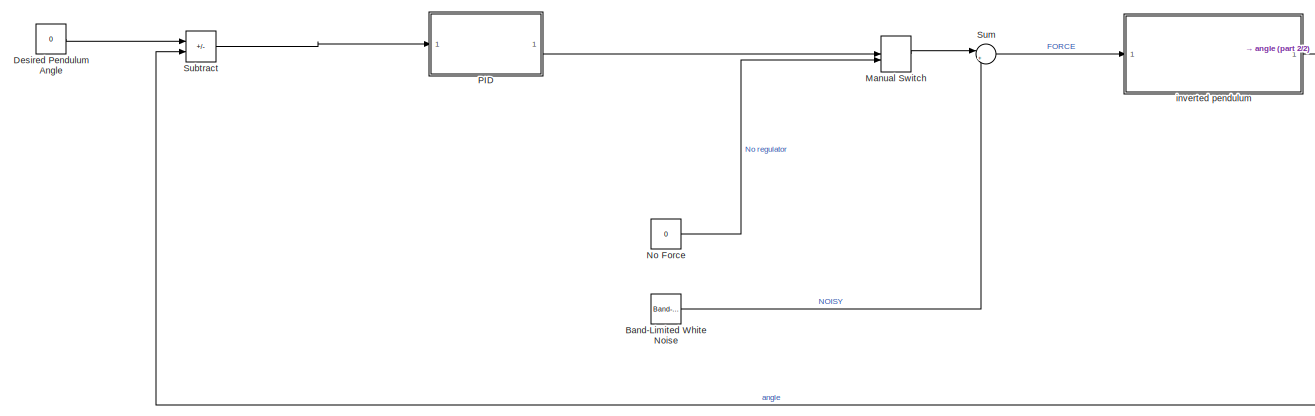
[diagram: root canvas - part 1/2, most of the canvas]
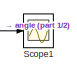
[diagram: root canvas - part 2/2, top right region]
MODEL slx_b23602e62d76
KIND model
CONFIG AbsTol = 1e-3
CONFIG EnableMultiTasking = on
CONFIG FixedStep = auto
CONFIG MaxStep = auto
CONFIG MinStep = auto
CONFIG RelTol = 1e-3
CONFIG SampleTimeConstraint = Unconstrained
CONFIG SolverName = VariableStepAuto
CONFIG StartTime = 0.0
CONFIG StopTime = 10.0
BLOCK [Reference] Band-Limited White Noise  REF=simulink/Sources/Band-Limited
White Noise
  Ports = [0, 1]
  SourceBlock = simulink/Sources/Band-Limited\nWhite Noise
  SourceProductBaseCode = SL
  SourceType = Band-Limited White Noise.
BLOCK [Constant] Desired Pendulum Angle
  Value = 0
BLOCK [ManualSwitch] Manual Switch
BLOCK [Constant] No Force
  Value = 0
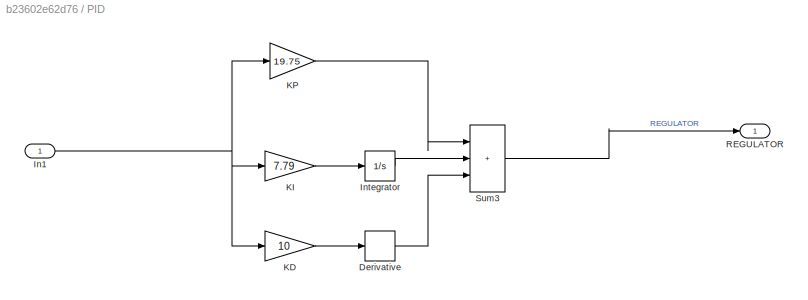
BLOCK [SubSystem] PID
  Ports = [1, 1]
  RequestExecContextInheritance = off
BLOCK [Derivative] PID/Derivative
BLOCK [Inport] PID/In1
BLOCK [Integrator] PID/Integrator
  Ports = [1, 1]
BLOCK [Gain] PID/KD
  Gain = 10
BLOCK [Gain] PID/KI
  Gain = 7.79
BLOCK [Gain] PID/KP
  Gain = 19.75
BLOCK [Outport] PID/REGULATOR
BLOCK [Sum] PID/Sum3
  IconShape = rectangular
  Inputs = |+++
  Ports = [3, 1]
BLOCK [Scope] Scope1
  Floating = off
  NumInputPorts = 1
  Ports = [1]
  ScopeSpecificationString = Simulink.scopes.TimeScopeBlockCfg('CurrentConfiguration', extmgr.ConfigurationSet(extmgr.Configuration('Core','General UI',true),extmgr.Configuration('Core','Source UI',true),extmgr.Configuration('Sources','WiredSimulink',true,'DataLoggingVariableName','ScopeData1'),extmgr.Configuration('Visuals','Time Domain',true,'SerializedDisplays',{struct('MinYLimReal','-0.04197','MaxYLimReal','0.04834','YLab...<+1417ch>
BLOCK [Sum] Subtract
  IconShape = rectangular
  Inputs = +-
  Ports = [2, 1]
BLOCK [Sum] Sum
  Inputs = |++
  Ports = [2, 1]
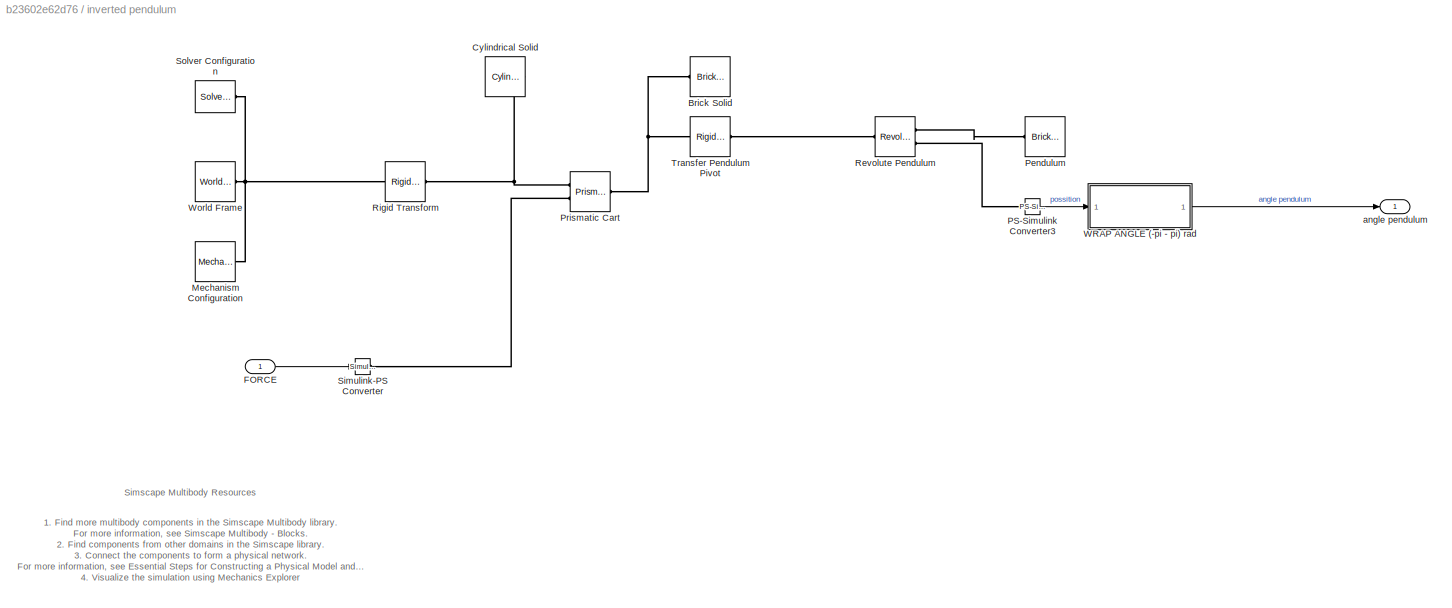
BLOCK [SubSystem] inverted pendulum
  Ports = [1, 1]
  RequestExecContextInheritance = off
BLOCK [Reference] inverted pendulum/Brick Solid  REF=sm_lib/Body Elements/Brick Solid
  NameLocation = right
  Ports = [0, 0, 0, 0, 0, 0, 1]
  SourceBlock = sm_lib/Body Elements/Brick Solid
  SourceProductBaseCode = MS
  SourceType = Brick Solid
BLOCK [Reference] inverted pendulum/Cylindrical Solid  REF=sm_lib/Body Elements/Cylindrical Solid
  Ports = [0, 0, 0, 0, 0, 0, 1]
  SourceBlock = sm_lib/Body Elements/Cylindrical Solid
  SourceProductBaseCode = MS
  SourceType = Cylindrical Solid
BLOCK [Inport] inverted pendulum/FORCE
BLOCK [Reference] inverted pendulum/Mechanism Configuration  REF=sm_lib/Utilities/Mechanism
Configuration
  Ports = [0, 0, 0, 0, 0, 0, 1]
  SourceBlock = sm_lib/Utilities/Mechanism\nConfiguration
  SourceProductBaseCode = MS
  SourceType = Mechanism\nConfiguration
BLOCK [Reference] inverted pendulum/PS-Simulink Converter3  REF=nesl_utility/PS-Simulink
Converter
  Ports = [0, 1, 0, 0, 0, 1]
  SourceBlock = nesl_utility/PS-Simulink\nConverter
  SourceProductBaseCode = PW,SS
  SourceType = PS-Simulink\nConverter
BLOCK [Reference] inverted pendulum/Pendulum  REF=sm_lib/Body Elements/Brick Solid
  Ports = [0, 0, 0, 0, 0, 1]
  SourceBlock = sm_lib/Body Elements/Brick Solid
  SourceProductBaseCode = MS
  SourceType = Brick Solid
BLOCK [Reference] inverted pendulum/Prismatic Cart  REF=sm_lib/Joints/Prismatic
Joint
  Ports = [0, 0, 0, 0, 0, 2, 1]
  SourceBlock = sm_lib/Joints/Prismatic\nJoint
  SourceProductBaseCode = MS
  SourceType = Prismatic\nJoint
BLOCK [Reference] inverted pendulum/Revolute Pendulum  REF=sm_lib/Joints/Revolute Joint
  Ports = [0, 0, 0, 0, 0, 1, 2]
  SourceBlock = sm_lib/Joints/Revolute Joint
  SourceProductBaseCode = MS
  SourceType = Revolute Joint
BLOCK [Reference] inverted pendulum/Rigid Transform  REF=sm_lib/Frames and
Transforms/Rigid
Transform
  Ports = [0, 0, 0, 0, 0, 1, 1]
  SourceBlock = sm_lib/Frames and\nTransforms/Rigid\nTransform
  SourceProductBaseCode = MS
  SourceType = Rigid\nTransform
BLOCK [Reference] inverted pendulum/Simulink-PS Converter  REF=nesl_utility/Simulink-PS
Converter
  Ports = [1, 0, 0, 0, 0, 0, 1]
  SourceBlock = nesl_utility/Simulink-PS\nConverter
  SourceProductBaseCode = PW,SS
  SourceType = Simulink-PS\nConverter
BLOCK [Reference] inverted pendulum/Solver Configuration  REF=nesl_utility/Solver
Configuration
  Ports = [0, 0, 0, 0, 0, 0, 1]
  SourceBlock = nesl_utility/Solver\nConfiguration
  SourceProductBaseCode = PW,SS
  SourceType = Solver\nConfiguration
BLOCK [Reference] inverted pendulum/Transfer Pendulum Pivot  REF=sm_lib/Frames and
Transforms/Rigid
Transform
  Ports = [0, 0, 0, 0, 0, 1, 1]
  SourceBlock = sm_lib/Frames and\nTransforms/Rigid\nTransform
  SourceProductBaseCode = MS
  SourceType = Rigid\nTransform
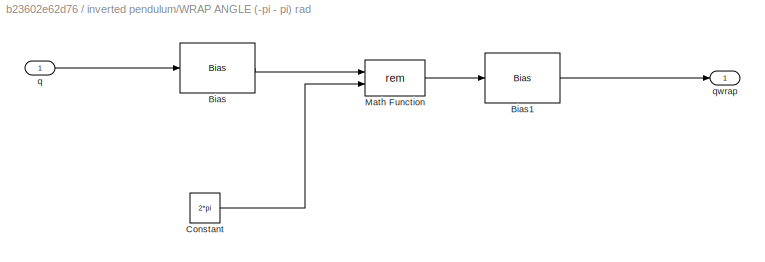
BLOCK [SubSystem] inverted pendulum/WRAP ANGLE  (-pi - pi) rad
  Ports = [1, 1]
  RequestExecContextInheritance = off
BLOCK [Bias] inverted pendulum/WRAP ANGLE  (-pi - pi) rad/Bias
  Bias = pi
  SaturateOnIntegerOverflow = off
BLOCK [Bias] inverted pendulum/WRAP ANGLE  (-pi - pi) rad/Bias1
  Bias = -pi
  SaturateOnIntegerOverflow = off
BLOCK [Constant] inverted pendulum/WRAP ANGLE  (-pi - pi) rad/Constant
  Value = 2*pi
BLOCK [Math] inverted pendulum/WRAP ANGLE  (-pi - pi) rad/Math Function
  Operator = rem
  Ports = [2, 1]
BLOCK [Inport] inverted pendulum/WRAP ANGLE  (-pi - pi) rad/q
BLOCK [Outport] inverted pendulum/WRAP ANGLE  (-pi - pi) rad/qwrap
BLOCK [Reference] inverted pendulum/World Frame  REF=sm_lib/Frames and
Transforms/World Frame
  Ports = [0, 0, 0, 0, 0, 0, 1]
  SourceBlock = sm_lib/Frames and\nTransforms/World Frame
  SourceProductBaseCode = MS
  SourceType = World Frame
BLOCK [Outport] inverted pendulum/angle pendulum
ANNOTATION inverted pendulum: 1. Find more multibody components in the Simscape Multibody library . For more information, see Simscape Multibody - Blocks . 2. Find components from other domains in the Simscape library . 3. Connect the components to form a physical network. For more information, see Essential Steps for Constructing a Physical Model and Creating a Multibody Model . 4. Visualize the simulation using Mechanics Exp...<+52ch>
ANNOTATION inverted pendulum: Simscape Multibody Resources
LINE Band-Limited White Noise:1 -> Sum:2
LINE Desired Pendulum Angle:1 -> Subtract:1
LINE Manual Switch:1 -> Sum:1
LINE No Force:1 -> Manual Switch:2
LINE PID/Derivative:1 -> PID/Sum3:3
NET PID/In1:1 -> PID/KD:1, PID/KI:1, PID/KP:1
LINE PID/Integrator:1 -> PID/Sum3:2
LINE PID/KD:1 -> PID/Derivative:1
LINE PID/KI:1 -> PID/Integrator:1
LINE PID/KP:1 -> PID/Sum3:1
LINE PID/Sum3:1 -> PID/REGULATOR:1
LINE PID:1 -> Manual Switch:1
LINE Subtract:1 -> PID:1
LINE Sum:1 -> inverted pendulum:1
LINE inverted pendulum/FORCE:1 -> inverted pendulum/Simulink-PS Converter:1
LINE inverted pendulum/PS-Simulink Converter3:1 -> inverted pendulum/WRAP ANGLE  (-pi - pi) rad:1
LINE inverted pendulum/WRAP ANGLE  (-pi - pi) rad/Bias1:1 -> inverted pendulum/WRAP ANGLE  (-pi - pi) rad/qwrap:1
LINE inverted pendulum/WRAP ANGLE  (-pi - pi) rad/Bias:1 -> inverted pendulum/WRAP ANGLE  (-pi - pi) rad/Math Function:1
LINE inverted pendulum/WRAP ANGLE  (-pi - pi) rad/Constant:1 -> inverted pendulum/WRAP ANGLE  (-pi - pi) rad/Math Function:2
LINE inverted pendulum/WRAP ANGLE  (-pi - pi) rad/Math Function:1 -> inverted pendulum/WRAP ANGLE  (-pi - pi) rad/Bias1:1
LINE inverted pendulum/WRAP ANGLE  (-pi - pi) rad/q:1 -> inverted pendulum/WRAP ANGLE  (-pi - pi) rad/Bias:1
LINE inverted pendulum/WRAP ANGLE  (-pi - pi) rad:1 -> inverted pendulum/angle pendulum:1
NET inverted pendulum:1 -> Scope1:1, Subtract:2
PNET net1: inverted pendulum/Brick Solid:RConn1 -- inverted pendulum/Prismatic Cart:RConn1 -- inverted pendulum/Transfer Pendulum Pivot:LConn1
PNET net2: inverted pendulum/Cylindrical Solid:RConn1 -- inverted pendulum/Prismatic Cart:LConn1 -- inverted pendulum/Rigid Transform:RConn1
PNET net3: inverted pendulum/Mechanism Configuration:RConn1 -- inverted pendulum/Rigid Transform:LConn1 -- inverted pendulum/Solver Configuration:RConn1 -- inverted pendulum/World Frame:RConn1
PLINE inverted pendulum/PS-Simulink Converter3:LConn1 -- inverted pendulum/Revolute Pendulum:RConn2
PLINE inverted pendulum/Pendulum:LConn1 -- inverted pendulum/Revolute Pendulum:RConn1
PLINE inverted pendulum/Prismatic Cart:LConn2 -- inverted pendulum/Simulink-PS Converter:RConn1
PLINE inverted pendulum/Revolute Pendulum:LConn1 -- inverted pendulum/Transfer Pendulum Pivot:RConn1
note: NET lines group one-source signal fan-out (src -> all destinations, sorted); 1:1 wires keep LINE; PNET lines group multi-terminal physical nets as a canonical sorted terminal list (undirected conserving connections); 2-terminal nets keep the pairwise PLINE form
